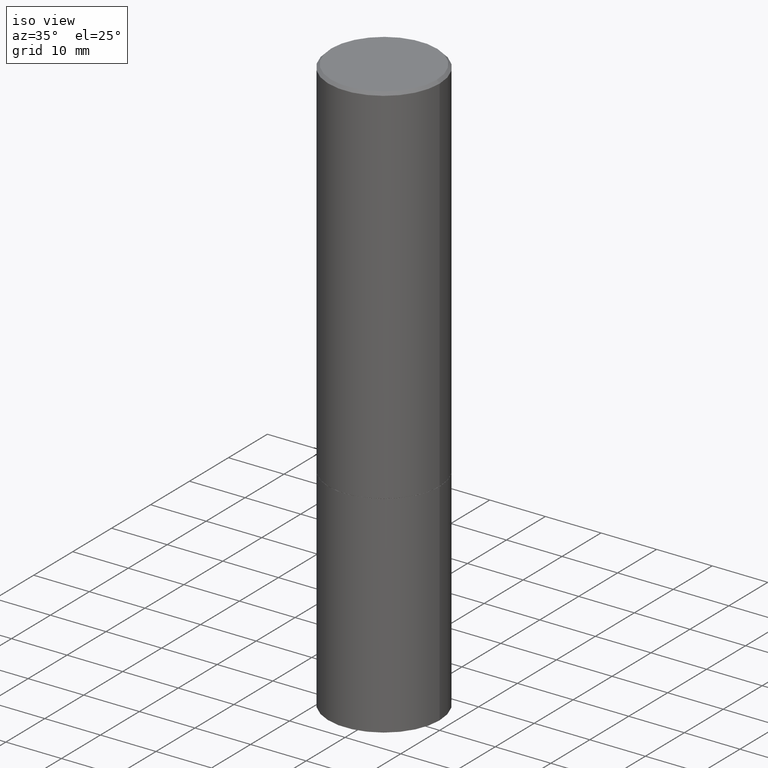
[diagram: clean part render]
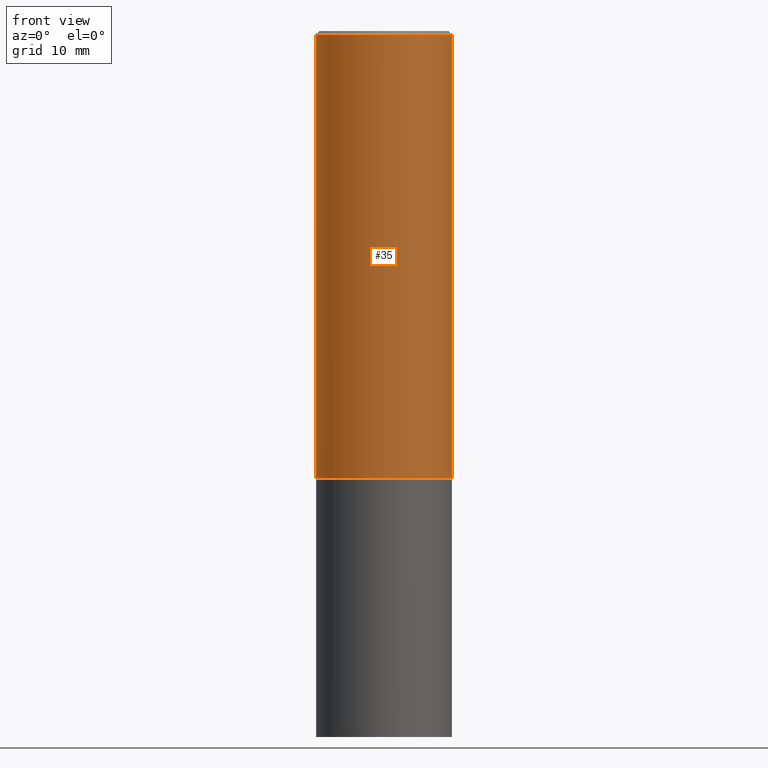
[diagram: tour spotlight — one face highlighted and labeled with its STEP entity id]
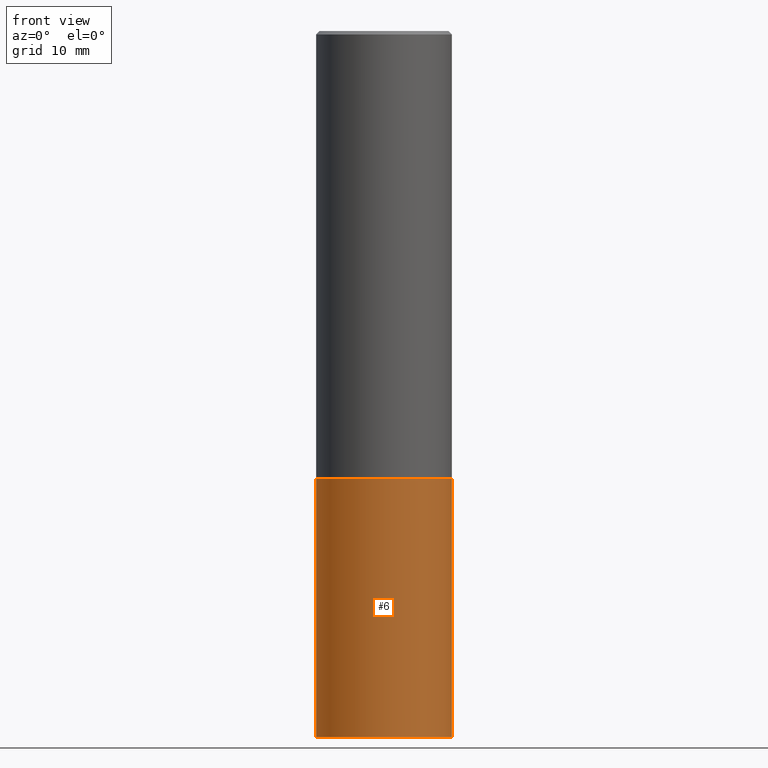
[diagram: tour spotlight — one face highlighted and labeled with its STEP entity id]
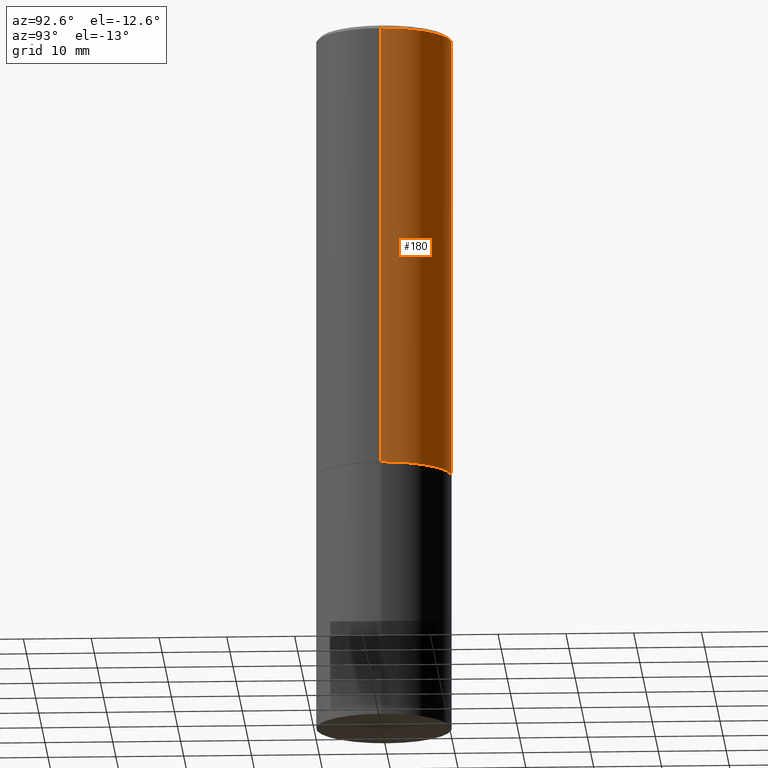
[diagram: tour spotlight — one face highlighted and labeled with its STEP entity id]
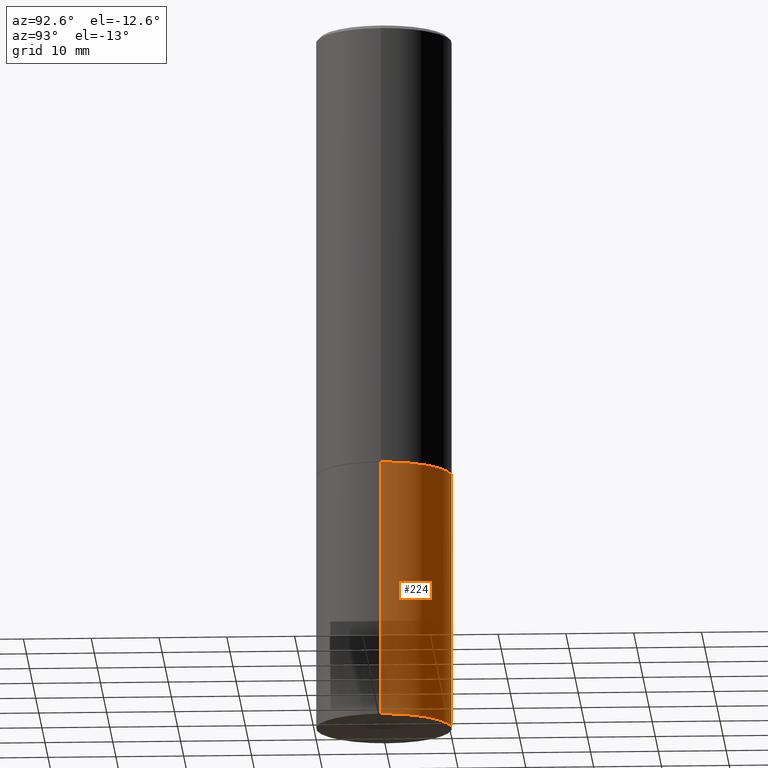
[diagram: tour spotlight — one face highlighted and labeled with its STEP entity id]
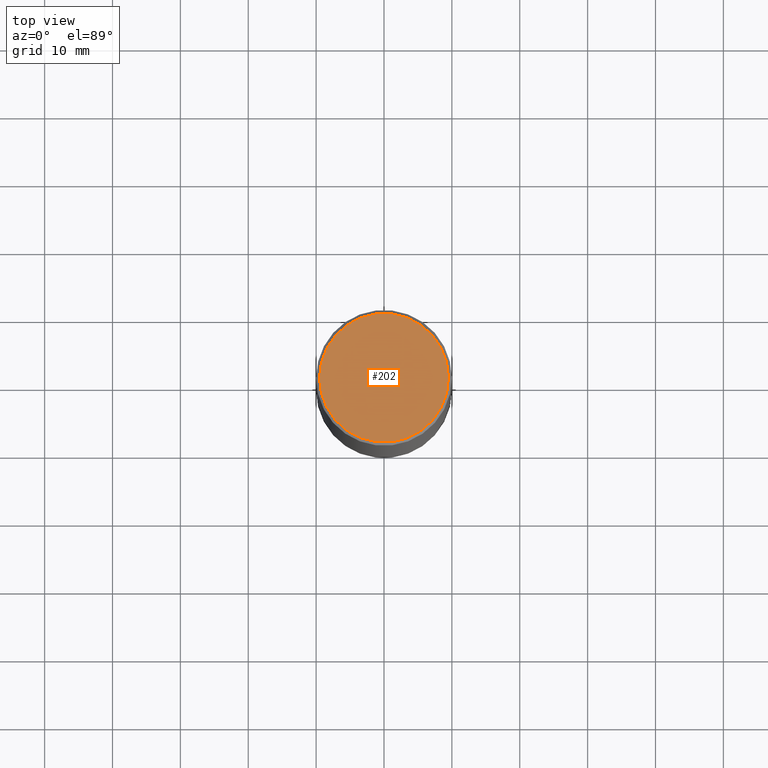
[diagram: tour spotlight — one face highlighted and labeled with its STEP entity id]
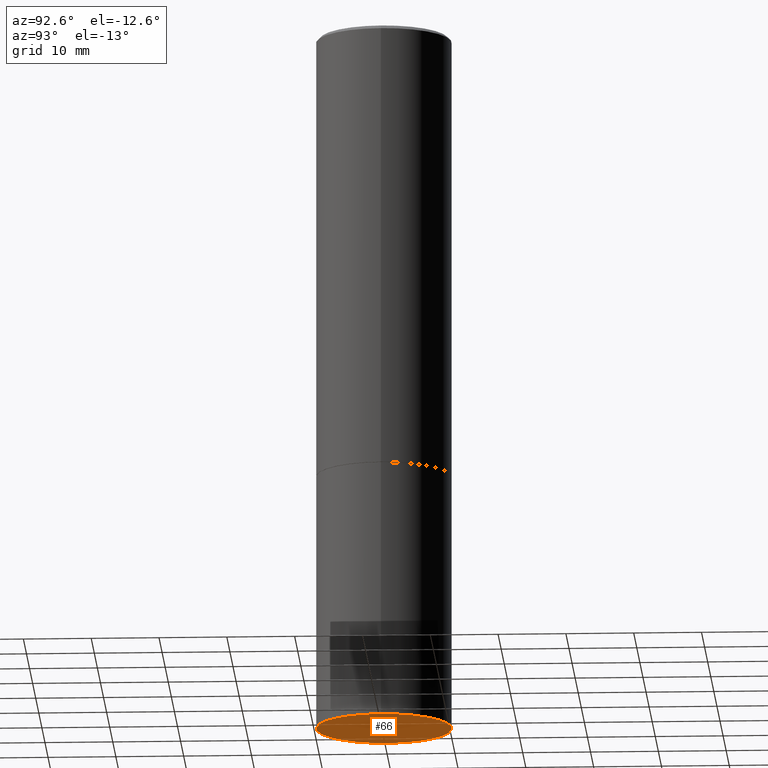
[diagram: tour spotlight — one face highlighted and labeled with its STEP entity id]
A machine part: a face-by-face anatomy tour. The part has 12 B-rep faces; the first image is the clean iso view, then the 6 largest visible faces are spotlighted one at a time (largest first), each with its STEP entity span.

Face 1 — front view, entity #35. In plain terms, the highlighted cylindrical surface (partial cylindrical patch) has radius 10 mm, axis along (-0, 0, 1).
Definition (entity closure, byte-faithful):
#10 = CYLINDRICAL_SURFACE ( 'NONE', #169, 0.3936999999999998279 ) ;
#25 = AXIS2_PLACEMENT_3D ( 'NONE', #278, #301, #162 ) ;
#35 = ADVANCED_FACE ( 'NONE', ( #264 ), #10, .T. ) ;
#49 = LINE ( 'NONE', #165, #260 ) ;
#60 = CARTESIAN_POINT ( 'NONE',  ( 0.000000000000000000, 0.000000000000000000, 0.000000000000000000 ) ) ;
#88 = CIRCLE ( 'NONE', #239, 0.3937000000000000499 ) ;
#99 = DIRECTION ( 'NONE',  ( 1.000000000000000000, -6.982962677686266711E-15, 4.876176775795935793E-29 ) ) ;
#112 = EDGE_CURVE ( 'NONE', #353, #328, #88, .T. ) ;
#127 = CARTESIAN_POINT ( 'NONE',  ( 6.351860677185276395E-29, -9.068773629511191193E-15, -2.597400000000001263 ) ) ;
#132 = CARTESIAN_POINT ( 'NONE',  ( -0.3936999999999996613, 2.679362779428217552E-15, -0.02000000000000009062 ) ) ;
#162 = DIRECTION ( 'NONE',  ( 1.000000000000000000, -6.982962677686266711E-15, 0.000000000000000000 ) ) ;
#165 = CARTESIAN_POINT ( 'NONE',  ( -0.3936999999999998279, 2.797406750687513209E-15, -1.936584745033355614E-29 ) ) ;
#168 = CARTESIAN_POINT ( 'NONE',  ( 0.3936999999999998279, -2.749192406205082033E-15, 1.919750796630859051E-29 ) ) ;
#169 = AXIS2_PLACEMENT_3D ( 'NONE', #60, #184, #99 ) ;
#184 = DIRECTION ( 'NONE',  ( -2.445468806185136597E-29, 3.491481338843145583E-15, 1.000000000000000000 ) ) ;
#197 = LINE ( 'NONE', #168, #199 ) ;
#199 = VECTOR ( 'NONE', #337, 39.37007874015748143 ) ;
#211 = DIRECTION ( 'NONE',  ( -2.445468806185136597E-29, 3.491481338843145583E-15, 1.000000000000000000 ) ) ;
#239 = AXIS2_PLACEMENT_3D ( 'NONE', #127, #211, #324 ) ;
#242 = CARTESIAN_POINT ( 'NONE',  ( -0.3937000000000000499, -1.771894877456511079E-15, -2.597400000000001263 ) ) ;
#244 = DIRECTION ( 'NONE',  ( -2.445468806185136877E-29, 3.491481338843145188E-15, 1.000000000000000000 ) ) ;
#248 = ORIENTED_EDGE ( 'NONE', *, *, #360, .T. ) ;
#260 = VECTOR ( 'NONE', #244, 39.37007874015748143 ) ;
#261 = ORIENTED_EDGE ( 'NONE', *, *, #296, .F. ) ;
#264 = FACE_OUTER_BOUND ( 'NONE', #306, .T. ) ;
#278 = CARTESIAN_POINT ( 'NONE',  ( 4.890937612370295054E-31, -6.982962677686322424E-17, -0.02000000000000009062 ) ) ;
#279 = ORIENTED_EDGE ( 'NONE', *, *, #112, .T. ) ;
#283 = CARTESIAN_POINT ( 'NONE',  ( 0.3936999999999996613, -2.770807688499512973E-15, -0.02000000000000009062 ) ) ;
#290 = EDGE_CURVE ( 'NONE', #353, #300, #49, .T. ) ;
#296 = EDGE_CURVE ( 'NONE', #300, #357, #297, .T. ) ;
#297 = CIRCLE ( 'NONE', #25, 0.3936999999999996613 ) ;
#300 = VERTEX_POINT ( 'NONE', #132 ) ;
#301 = DIRECTION ( 'NONE',  ( -2.445468806185136597E-29, 3.491481338843145583E-15, 1.000000000000000000 ) ) ;
#306 = EDGE_LOOP ( 'NONE', ( #343, #279, #248, #261 ) ) ;
#324 = DIRECTION ( 'NONE',  ( 1.000000000000000000, -6.982962677686267499E-15, 0.000000000000000000 ) ) ;
#328 = VERTEX_POINT ( 'NONE', #354 ) ;
#337 = DIRECTION ( 'NONE',  ( -2.445468806185136877E-29, 3.491481338843145188E-15, 1.000000000000000000 ) ) ;
#343 = ORIENTED_EDGE ( 'NONE', *, *, #290, .F. ) ;
#353 = VERTEX_POINT ( 'NONE', #242 ) ;
#354 = CARTESIAN_POINT ( 'NONE',  ( 0.3937000000000000499, -1.181796603571627441E-14, -2.597400000000001263 ) ) ;
#357 = VERTEX_POINT ( 'NONE', #283 ) ;
#360 = EDGE_CURVE ( 'NONE', #328, #357, #197, .T. ) ;

Face 2 — front view, entity #6. In plain terms, the highlighted cylindrical surface (partial cylindrical patch) has radius 10 mm, axis along (-0, 0, 1).
Definition (entity closure, byte-faithful):
#6 = ADVANCED_FACE ( 'NONE', ( #241 ), #153, .T. ) ;
#7 = AXIS2_PLACEMENT_3D ( 'NONE', #216, #193, #129 ) ;
#8 = CARTESIAN_POINT ( 'NONE',  ( 0.3937000000000000499, -2.749192406205083217E-15, 1.919750796630860172E-29 ) ) ;
#13 = EDGE_CURVE ( 'NONE', #76, #72, #348, .T. ) ;
#14 = CARTESIAN_POINT ( 'NONE',  ( -0.3937000000000000499, -8.886660975684131482E-15, -2.598400000000000265 ) ) ;
#47 = ORIENTED_EDGE ( 'NONE', *, *, #96, .F. ) ;
#64 = DIRECTION ( 'NONE',  ( 1.000000000000000000, -6.982962677686265922E-15, 4.876176775795935793E-29 ) ) ;
#70 = ORIENTED_EDGE ( 'NONE', *, *, #339, .T. ) ;
#72 = VERTEX_POINT ( 'NONE', #14 ) ;
#76 = VERTEX_POINT ( 'NONE', #347 ) ;
#80 = VERTEX_POINT ( 'NONE', #182 ) ;
#90 = LINE ( 'NONE', #8, #110 ) ;
#93 = CARTESIAN_POINT ( 'NONE',  ( 0.000000000000000000, 0.000000000000000000, 0.000000000000000000 ) ) ;
#96 = EDGE_CURVE ( 'NONE', #72, #80, #317, .T. ) ;
#110 = VECTOR ( 'NONE', #344, 39.37007874015748143 ) ;
#129 = DIRECTION ( 'NONE',  ( 1.000000000000000000, -6.982962677686267499E-15, 0.000000000000000000 ) ) ;
#143 = VERTEX_POINT ( 'NONE', #185 ) ;
#148 = EDGE_CURVE ( 'NONE', #143, #80, #90, .T. ) ;
#153 = CYLINDRICAL_SURFACE ( 'NONE', #346, 0.3937000000000000499 ) ;
#159 = ORIENTED_EDGE ( 'NONE', *, *, #13, .F. ) ;
#176 = AXIS2_PLACEMENT_3D ( 'NONE', #210, #207, #183 ) ;
#177 = CIRCLE ( 'NONE', #7, 0.3937000000000000499 ) ;
#182 = CARTESIAN_POINT ( 'NONE',  ( 0.3937000000000000499, -1.182145751705511584E-14, -2.598400000000000265 ) ) ;
#183 = DIRECTION ( 'NONE',  ( 1.000000000000000000, -6.982962677686267499E-15, 0.000000000000000000 ) ) ;
#185 = CARTESIAN_POINT ( 'NONE',  ( 0.3937000000000000499, -1.704506274809834471E-14, -4.094500000000000028 ) ) ;
#193 = DIRECTION ( 'NONE',  ( -2.445468806185136597E-29, 3.491481338843145583E-15, 1.000000000000000000 ) ) ;
#207 = DIRECTION ( 'NONE',  ( -2.445468806185136597E-29, 3.491481338843145583E-15, 1.000000000000000000 ) ) ;
#209 = CARTESIAN_POINT ( 'NONE',  ( -0.3937000000000000499, 2.797406750687514786E-15, -1.936584745033356735E-29 ) ) ;
#210 = CARTESIAN_POINT ( 'NONE',  ( 6.354306145991459756E-29, -9.072265110850031044E-15, -2.598400000000000265 ) ) ;
#216 = CARTESIAN_POINT ( 'NONE',  ( 1.001297202692504215E-28, -1.429587034189326149E-14, -4.094500000000000028 ) ) ;
#232 = DIRECTION ( 'NONE',  ( -2.445468806185136597E-29, 3.491481338843145583E-15, 1.000000000000000000 ) ) ;
#241 = FACE_OUTER_BOUND ( 'NONE', #245, .T. ) ;
#245 = EDGE_LOOP ( 'NONE', ( #159, #70, #277, #47 ) ) ;
#246 = VECTOR ( 'NONE', #269, 39.37007874015748143 ) ;
#269 = DIRECTION ( 'NONE',  ( -2.445468806185136877E-29, 3.491481338843145188E-15, 1.000000000000000000 ) ) ;
#277 = ORIENTED_EDGE ( 'NONE', *, *, #148, .T. ) ;
#317 = CIRCLE ( 'NONE', #176, 0.3937000000000000499 ) ;
#339 = EDGE_CURVE ( 'NONE', #76, #143, #177, .T. ) ;
#344 = DIRECTION ( 'NONE',  ( -2.445468806185136877E-29, 3.491481338843145188E-15, 1.000000000000000000 ) ) ;
#346 = AXIS2_PLACEMENT_3D ( 'NONE', #93, #232, #64 ) ;
#347 = CARTESIAN_POINT ( 'NONE',  ( -0.3937000000000000499, -8.886660975684131482E-15, -4.094500000000000028 ) ) ;
#348 = LINE ( 'NONE', #209, #246 ) ;

Face 3 — auxiliary view, entity #180. In plain terms, the highlighted cylindrical surface (partial cylindrical patch) has radius 10 mm, axis along (-0, 0, 1).
Definition (entity closure, byte-faithful):
#9 = CARTESIAN_POINT ( 'NONE',  ( 6.351860677185276395E-29, -9.068773629511191193E-15, -2.597400000000001263 ) ) ;
#16 = ORIENTED_EDGE ( 'NONE', *, *, #308, .F. ) ;
#24 = CIRCLE ( 'NONE', #37, 0.3937000000000000499 ) ;
#37 = AXIS2_PLACEMENT_3D ( 'NONE', #9, #318, #62 ) ;
#39 = CIRCLE ( 'NONE', #352, 0.3936999999999996613 ) ;
#40 = DIRECTION ( 'NONE',  ( 1.000000000000000000, -6.982962677686266711E-15, 4.876176775795935793E-29 ) ) ;
#49 = LINE ( 'NONE', #165, #260 ) ;
#62 = DIRECTION ( 'NONE',  ( 1.000000000000000000, -6.982962677686267499E-15, 0.000000000000000000 ) ) ;
#73 = CARTESIAN_POINT ( 'NONE',  ( 4.890937612370295054E-31, -6.982962677686322424E-17, -0.02000000000000009062 ) ) ;
#119 = AXIS2_PLACEMENT_3D ( 'NONE', #271, #276, #40 ) ;
#132 = CARTESIAN_POINT ( 'NONE',  ( -0.3936999999999996613, 2.679362779428217552E-15, -0.02000000000000009062 ) ) ;
#165 = CARTESIAN_POINT ( 'NONE',  ( -0.3936999999999998279, 2.797406750687513209E-15, -1.936584745033355614E-29 ) ) ;
#168 = CARTESIAN_POINT ( 'NONE',  ( 0.3936999999999998279, -2.749192406205082033E-15, 1.919750796630859051E-29 ) ) ;
#174 = EDGE_CURVE ( 'NONE', #328, #353, #24, .T. ) ;
#180 = ADVANCED_FACE ( 'NONE', ( #299 ), #272, .T. ) ;
#197 = LINE ( 'NONE', #168, #199 ) ;
#199 = VECTOR ( 'NONE', #337, 39.37007874015748143 ) ;
#212 = DIRECTION ( 'NONE',  ( -2.445468806185136597E-29, 3.491481338843145583E-15, 1.000000000000000000 ) ) ;
#223 = ORIENTED_EDGE ( 'NONE', *, *, #174, .T. ) ;
#242 = CARTESIAN_POINT ( 'NONE',  ( -0.3937000000000000499, -1.771894877456511079E-15, -2.597400000000001263 ) ) ;
#244 = DIRECTION ( 'NONE',  ( -2.445468806185136877E-29, 3.491481338843145188E-15, 1.000000000000000000 ) ) ;
#247 = DIRECTION ( 'NONE',  ( 1.000000000000000000, -6.982962677686266711E-15, 0.000000000000000000 ) ) ;
#250 = EDGE_LOOP ( 'NONE', ( #223, #255, #16, #333 ) ) ;
#255 = ORIENTED_EDGE ( 'NONE', *, *, #290, .T. ) ;
#260 = VECTOR ( 'NONE', #244, 39.37007874015748143 ) ;
#271 = CARTESIAN_POINT ( 'NONE',  ( 0.000000000000000000, 0.000000000000000000, 0.000000000000000000 ) ) ;
#272 = CYLINDRICAL_SURFACE ( 'NONE', #119, 0.3936999999999998279 ) ;
#276 = DIRECTION ( 'NONE',  ( -2.445468806185136597E-29, 3.491481338843145583E-15, 1.000000000000000000 ) ) ;
#283 = CARTESIAN_POINT ( 'NONE',  ( 0.3936999999999996613, -2.770807688499512973E-15, -0.02000000000000009062 ) ) ;
#290 = EDGE_CURVE ( 'NONE', #353, #300, #49, .T. ) ;
#299 = FACE_OUTER_BOUND ( 'NONE', #250, .T. ) ;
#300 = VERTEX_POINT ( 'NONE', #132 ) ;
#308 = EDGE_CURVE ( 'NONE', #357, #300, #39, .T. ) ;
#318 = DIRECTION ( 'NONE',  ( -2.445468806185136597E-29, 3.491481338843145583E-15, 1.000000000000000000 ) ) ;
#328 = VERTEX_POINT ( 'NONE', #354 ) ;
#333 = ORIENTED_EDGE ( 'NONE', *, *, #360, .F. ) ;
#337 = DIRECTION ( 'NONE',  ( -2.445468806185136877E-29, 3.491481338843145188E-15, 1.000000000000000000 ) ) ;
#352 = AXIS2_PLACEMENT_3D ( 'NONE', #73, #212, #247 ) ;
#353 = VERTEX_POINT ( 'NONE', #242 ) ;
#354 = CARTESIAN_POINT ( 'NONE',  ( 0.3937000000000000499, -1.181796603571627441E-14, -2.597400000000001263 ) ) ;
#357 = VERTEX_POINT ( 'NONE', #283 ) ;
#360 = EDGE_CURVE ( 'NONE', #328, #357, #197, .T. ) ;

Face 4 — auxiliary view, entity #224. In plain terms, the highlighted cylindrical surface (partial cylindrical patch) has radius 10 mm, axis along (-0, 0, 1).
Definition (entity closure, byte-faithful):
#8 = CARTESIAN_POINT ( 'NONE',  ( 0.3937000000000000499, -2.749192406205083217E-15, 1.919750796630860172E-29 ) ) ;
#13 = EDGE_CURVE ( 'NONE', #76, #72, #348, .T. ) ;
#14 = CARTESIAN_POINT ( 'NONE',  ( -0.3937000000000000499, -8.886660975684131482E-15, -2.598400000000000265 ) ) ;
#32 = DIRECTION ( 'NONE',  ( -2.445468806185136597E-29, 3.491481338843145583E-15, 1.000000000000000000 ) ) ;
#42 = EDGE_LOOP ( 'NONE', ( #311, #335, #118, #309 ) ) ;
#72 = VERTEX_POINT ( 'NONE', #14 ) ;
#76 = VERTEX_POINT ( 'NONE', #347 ) ;
#80 = VERTEX_POINT ( 'NONE', #182 ) ;
#90 = LINE ( 'NONE', #8, #110 ) ;
#106 = CARTESIAN_POINT ( 'NONE',  ( 0.000000000000000000, 0.000000000000000000, 0.000000000000000000 ) ) ;
#110 = VECTOR ( 'NONE', #344, 39.37007874015748143 ) ;
#118 = ORIENTED_EDGE ( 'NONE', *, *, #229, .F. ) ;
#121 = CARTESIAN_POINT ( 'NONE',  ( 1.001297202692504215E-28, -1.429587034189326149E-14, -4.094500000000000028 ) ) ;
#143 = VERTEX_POINT ( 'NONE', #185 ) ;
#148 = EDGE_CURVE ( 'NONE', #143, #80, #90, .T. ) ;
#157 = CARTESIAN_POINT ( 'NONE',  ( 6.354306145991459756E-29, -9.072265110850031044E-15, -2.598400000000000265 ) ) ;
#160 = EDGE_CURVE ( 'NONE', #143, #76, #313, .T. ) ;
#182 = CARTESIAN_POINT ( 'NONE',  ( 0.3937000000000000499, -1.182145751705511584E-14, -2.598400000000000265 ) ) ;
#185 = CARTESIAN_POINT ( 'NONE',  ( 0.3937000000000000499, -1.704506274809834471E-14, -4.094500000000000028 ) ) ;
#209 = CARTESIAN_POINT ( 'NONE',  ( -0.3937000000000000499, 2.797406750687514786E-15, -1.936584745033356735E-29 ) ) ;
#224 = ADVANCED_FACE ( 'NONE', ( #330 ), #298, .T. ) ;
#229 = EDGE_CURVE ( 'NONE', #80, #72, #289, .T. ) ;
#246 = VECTOR ( 'NONE', #269, 39.37007874015748143 ) ;
#253 = AXIS2_PLACEMENT_3D ( 'NONE', #157, #303, #358 ) ;
#266 = DIRECTION ( 'NONE',  ( 1.000000000000000000, -6.982962677686267499E-15, 0.000000000000000000 ) ) ;
#269 = DIRECTION ( 'NONE',  ( -2.445468806185136877E-29, 3.491481338843145188E-15, 1.000000000000000000 ) ) ;
#289 = CIRCLE ( 'NONE', #253, 0.3937000000000000499 ) ;
#298 = CYLINDRICAL_SURFACE ( 'NONE', #351, 0.3937000000000000499 ) ;
#303 = DIRECTION ( 'NONE',  ( -2.445468806185136597E-29, 3.491481338843145583E-15, 1.000000000000000000 ) ) ;
#309 = ORIENTED_EDGE ( 'NONE', *, *, #148, .F. ) ;
#311 = ORIENTED_EDGE ( 'NONE', *, *, #160, .T. ) ;
#313 = CIRCLE ( 'NONE', #359, 0.3937000000000000499 ) ;
#329 = DIRECTION ( 'NONE',  ( -2.445468806185136597E-29, 3.491481338843145583E-15, 1.000000000000000000 ) ) ;
#330 = FACE_OUTER_BOUND ( 'NONE', #42, .T. ) ;
#335 = ORIENTED_EDGE ( 'NONE', *, *, #13, .T. ) ;
#344 = DIRECTION ( 'NONE',  ( -2.445468806185136877E-29, 3.491481338843145188E-15, 1.000000000000000000 ) ) ;
#347 = CARTESIAN_POINT ( 'NONE',  ( -0.3937000000000000499, -8.886660975684131482E-15, -4.094500000000000028 ) ) ;
#348 = LINE ( 'NONE', #209, #246 ) ;
#349 = DIRECTION ( 'NONE',  ( 1.000000000000000000, -6.982962677686265922E-15, 4.876176775795935793E-29 ) ) ;
#351 = AXIS2_PLACEMENT_3D ( 'NONE', #106, #329, #349 ) ;
#358 = DIRECTION ( 'NONE',  ( 1.000000000000000000, -6.982962677686267499E-15, 0.000000000000000000 ) ) ;
#359 = AXIS2_PLACEMENT_3D ( 'NONE', #121, #32, #266 ) ;

Face 5 — top view, entity #202. In plain terms, the highlighted planar face has unit normal (0, -0, -1).
Definition (entity closure, byte-faithful):
#15 = CARTESIAN_POINT ( 'NONE',  ( -2.087702828670439639E-46, 2.980686340760894400E-32, 8.537024980200822558E-18 ) ) ;
#18 = AXIS2_PLACEMENT_3D ( 'NONE', #15, #249, #134 ) ;
#23 = VERTEX_POINT ( 'NONE', #270 ) ;
#69 = PLANE ( 'NONE',  #102 ) ;
#74 = AXIS2_PLACEMENT_3D ( 'NONE', #345, #179, #235 ) ;
#78 = VERTEX_POINT ( 'NONE', #124 ) ;
#102 = AXIS2_PLACEMENT_3D ( 'NONE', #163, #275, #220 ) ;
#108 = ORIENTED_EDGE ( 'NONE', *, *, #141, .T. ) ;
#124 = CARTESIAN_POINT ( 'NONE',  ( -0.3736999999999996436, 2.644447966039786297E-15, 8.537024980182450727E-18 ) ) ;
#134 = DIRECTION ( 'NONE',  ( 1.000000000000000000, -6.982962677686266711E-15, 4.876212485538980163E-29 ) ) ;
#141 = EDGE_CURVE ( 'NONE', #23, #78, #233, .T. ) ;
#163 = CARTESIAN_POINT ( 'NONE',  ( 2.609533152651354648E-15, 0.3736999999999996436, -1.300498063835581828E-15 ) ) ;
#179 = DIRECTION ( 'NONE',  ( -2.445468806185136597E-29, 3.491481338843145583E-15, 1.000000000000000000 ) ) ;
#196 = EDGE_LOOP ( 'NONE', ( #273, #108 ) ) ;
#202 = ADVANCED_FACE ( 'NONE', ( #325 ), #69, .F. ) ;
#220 = DIRECTION ( 'NONE',  ( -1.000000000000000000, 6.982962677686265922E-15, -4.876176775795935793E-29 ) ) ;
#233 = CIRCLE ( 'NONE', #74, 0.3736999999999996436 ) ;
#235 = DIRECTION ( 'NONE',  ( 1.000000000000000000, -6.982962677686266711E-15, 4.876212485538980163E-29 ) ) ;
#238 = EDGE_CURVE ( 'NONE', #78, #23, #336, .T. ) ;
#249 = DIRECTION ( 'NONE',  ( -2.445468806185136597E-29, 3.491481338843145583E-15, 1.000000000000000000 ) ) ;
#270 = CARTESIAN_POINT ( 'NONE',  ( 0.3736999999999996436, -2.667287895133365992E-15, 8.537024980219274507E-18 ) ) ;
#273 = ORIENTED_EDGE ( 'NONE', *, *, #238, .T. ) ;
#275 = DIRECTION ( 'NONE',  ( 2.438088387897960049E-29, -3.491481338843145188E-15, -1.000000000000000000 ) ) ;
#325 = FACE_OUTER_BOUND ( 'NONE', #196, .T. ) ;
#336 = CIRCLE ( 'NONE', #18, 0.3736999999999996436 ) ;
#345 = CARTESIAN_POINT ( 'NONE',  ( -2.087702828670439639E-46, 2.980686340760894400E-32, 8.537024980200822558E-18 ) ) ;

Face 6 — auxiliary view, entity #66. In plain terms, the highlighted planar face has unit normal (0, -0, -1).
Definition (entity closure, byte-faithful):
#7 = AXIS2_PLACEMENT_3D ( 'NONE', #216, #193, #129 ) ;
#11 = DIRECTION ( 'NONE',  ( -1.000000000000000000, 6.982962677686265922E-15, -4.876176775795935793E-29 ) ) ;
#32 = DIRECTION ( 'NONE',  ( -2.445468806185136597E-29, 3.491481338843145583E-15, 1.000000000000000000 ) ) ;
#36 = PLANE ( 'NONE',  #61 ) ;
#61 = AXIS2_PLACEMENT_3D ( 'NONE', #100, #291, #11 ) ;
#66 = ADVANCED_FACE ( 'NONE', ( #237 ), #36, .T. ) ;
#76 = VERTEX_POINT ( 'NONE', #347 ) ;
#100 = CARTESIAN_POINT ( 'NONE',  ( 2.749192406205183007E-15, 0.3936999999999857280, -4.094500000000001805 ) ) ;
#121 = CARTESIAN_POINT ( 'NONE',  ( 1.001297202692504215E-28, -1.429587034189326149E-14, -4.094500000000000028 ) ) ;
#129 = DIRECTION ( 'NONE',  ( 1.000000000000000000, -6.982962677686267499E-15, 0.000000000000000000 ) ) ;
#135 = ORIENTED_EDGE ( 'NONE', *, *, #339, .F. ) ;
#143 = VERTEX_POINT ( 'NONE', #185 ) ;
#160 = EDGE_CURVE ( 'NONE', #143, #76, #313, .T. ) ;
#167 = ORIENTED_EDGE ( 'NONE', *, *, #160, .F. ) ;
#177 = CIRCLE ( 'NONE', #7, 0.3937000000000000499 ) ;
#185 = CARTESIAN_POINT ( 'NONE',  ( 0.3937000000000000499, -1.704506274809834471E-14, -4.094500000000000028 ) ) ;
#190 = EDGE_LOOP ( 'NONE', ( #167, #135 ) ) ;
#193 = DIRECTION ( 'NONE',  ( -2.445468806185136597E-29, 3.491481338843145583E-15, 1.000000000000000000 ) ) ;
#216 = CARTESIAN_POINT ( 'NONE',  ( 1.001297202692504215E-28, -1.429587034189326149E-14, -4.094500000000000028 ) ) ;
#237 = FACE_OUTER_BOUND ( 'NONE', #190, .T. ) ;
#266 = DIRECTION ( 'NONE',  ( 1.000000000000000000, -6.982962677686267499E-15, 0.000000000000000000 ) ) ;
#291 = DIRECTION ( 'NONE',  ( 2.438088387897960049E-29, -3.491481338843145188E-15, -1.000000000000000000 ) ) ;
#313 = CIRCLE ( 'NONE', #359, 0.3937000000000000499 ) ;
#339 = EDGE_CURVE ( 'NONE', #76, #143, #177, .T. ) ;
#347 = CARTESIAN_POINT ( 'NONE',  ( -0.3937000000000000499, -8.886660975684131482E-15, -4.094500000000000028 ) ) ;
#359 = AXIS2_PLACEMENT_3D ( 'NONE', #121, #32, #266 ) ;